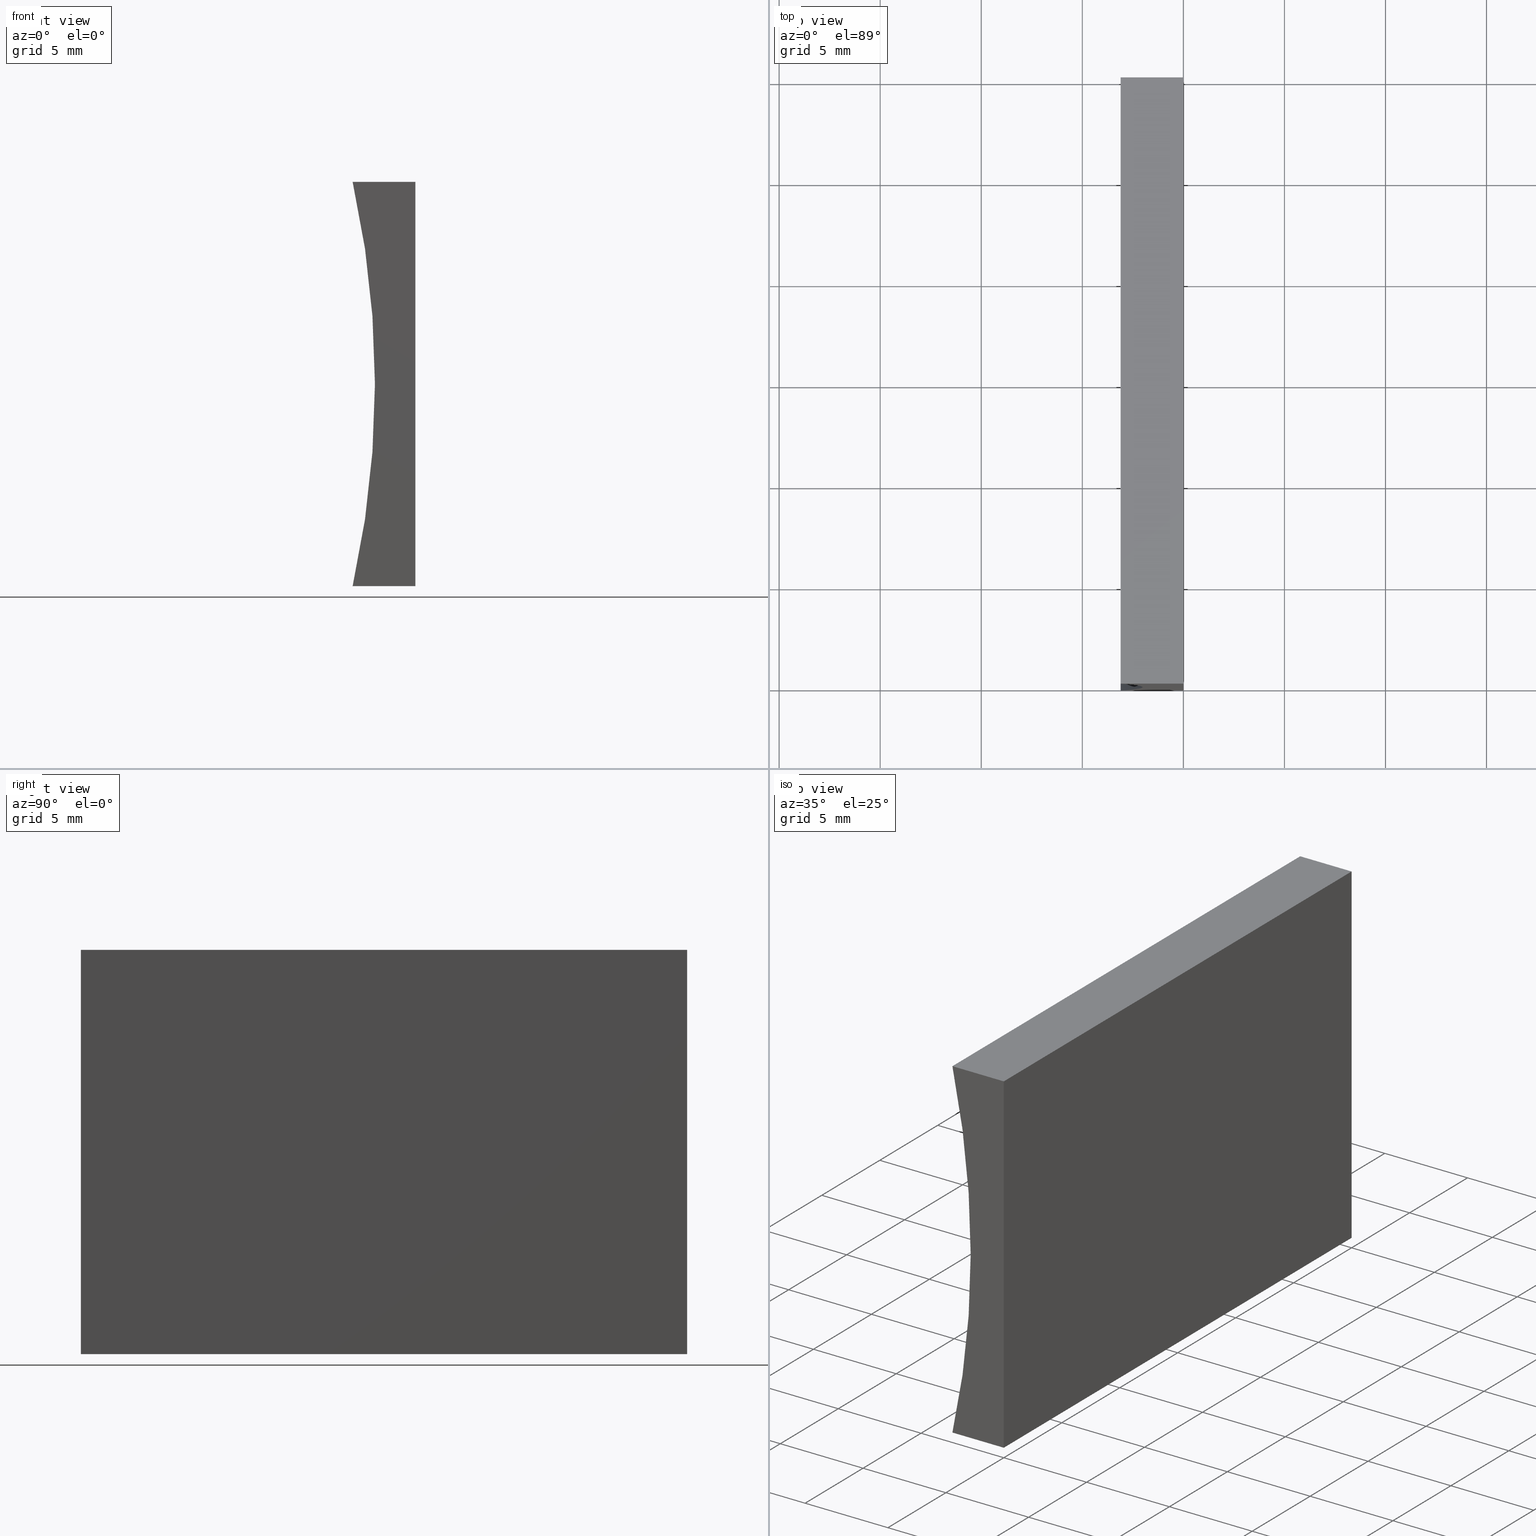
[diagram: canonical four-view strip — front | top / right | iso, engineering-drawing reading convention]
A machine part, canonical four-view strip (front | top / right | iso — engineering-drawing reading convention). The complete STEP part file that produces these views, byte-faithful:
ISO-10303-21;
HEADER;
FILE_DESCRIPTION (( 'STEP AP214' ),
    '1' );
FILE_NAME ('155489.STEP',
    '2019-07-04T03:37:12',
    ( 'user' ),
    ( '΢���й�' ),
    'SwSTEP 2.0',
    'SolidWorks 2016',
    '' );
FILE_SCHEMA (( 'AUTOMOTIVE_DESIGN' ));
ENDSEC;

DATA;
#1 = EDGE_CURVE ( 'NONE', #10, #32, #5, .T. ) ;
#2 = EDGE_LOOP ( 'NONE', ( #13, #92, #108, #86 ) ) ;
#3 = VERTEX_POINT ( 'NONE', #78 ) ;
#4 =( NAMED_UNIT ( * ) PLANE_ANGLE_UNIT ( ) SI_UNIT ( $, .RADIAN. ) );
#5 = LINE ( 'NONE', #198, #146 ) ;
#6 = ADVANCED_FACE ( 'NONE', ( #24 ), #161, .T. ) ;
#7 = EDGE_CURVE ( 'NONE', #3, #93, #80, .T. ) ;
#8 = DIRECTION ( 'NONE',  ( 0.0000000000000000000, 0.0000000000000000000, 1.000000000000000000 ) ) ;
#9 = VECTOR ( 'NONE', #37, 1000.000000000000000 ) ;
#10 = VERTEX_POINT ( 'NONE', #115 ) ;
#11 = PRODUCT_DEFINITION_CONTEXT ( 'detailed design', #112, 'design' ) ;
#12 = ORIENTED_EDGE ( 'NONE', *, *, #34, .T. ) ;
#13 = ORIENTED_EDGE ( 'NONE', *, *, #62, .F. ) ;
#14 = SURFACE_STYLE_FILL_AREA ( #195 ) ;
#15 = EDGE_CURVE ( 'NONE', #93, #172, #50, .T. ) ;
#16 = SURFACE_SIDE_STYLE ('',( #162 ) ) ;
#17 = AXIS2_PLACEMENT_3D ( 'NONE', #22, #201, #83 ) ;
#18 = ORIENTED_EDGE ( 'NONE', *, *, #101, .F. ) ;
#19 = APPLICATION_PROTOCOL_DEFINITION ( 'draft international standard', 'automotive_design', 1998, #116 ) ;
#20 = ORIENTED_EDGE ( 'NONE', *, *, #1, .T. ) ;
#21 = VERTEX_POINT ( 'NONE', #99 ) ;
#22 = CARTESIAN_POINT ( 'NONE',  ( 2.449293598294706500E-015, 30.00000000000000000, 20.00000000000000000 ) ) ;
#23 =( GEOMETRIC_REPRESENTATION_CONTEXT ( 3 ) GLOBAL_UNCERTAINTY_ASSIGNED_CONTEXT ( ( #94 ) ) GLOBAL_UNIT_ASSIGNED_CONTEXT ( ( #113, #90, #70 ) ) REPRESENTATION_CONTEXT ( 'NONE', 'WORKASPACE' ) );
#24 = FACE_OUTER_BOUND ( 'NONE', #168, .T. ) ;
#25 = PRESENTATION_STYLE_ASSIGNMENT (( #197 ) ) ;
#26 = LINE ( 'NONE', #59, #152 ) ;
#27 = EDGE_LOOP ( 'NONE', ( #43, #39, #38, #35 ) ) ;
#28 = ORIENTED_EDGE ( 'NONE', *, *, #105, .T. ) ;
#29 = AXIS2_PLACEMENT_3D ( 'NONE', #149, #82, #54 ) ;
#30 = ORIENTED_EDGE ( 'NONE', *, *, #51, .T. ) ;
#31 = DIRECTION ( 'NONE',  ( 0.0000000000000000000, 0.0000000000000000000, 1.000000000000000000 ) ) ;
#32 = VERTEX_POINT ( 'NONE', #127 ) ;
#33 = DIRECTION ( 'NONE',  ( 0.0000000000000000000, 0.0000000000000000000, -1.000000000000000000 ) ) ;
#34 = EDGE_CURVE ( 'NONE', #154, #10, #26, .T. ) ;
#35 = ORIENTED_EDGE ( 'NONE', *, *, #199, .T. ) ;
#36 = ORIENTED_EDGE ( 'NONE', *, *, #101, .T. ) ;
#37 = DIRECTION ( 'NONE',  ( 1.000000000000000000, -0.0000000000000000000, 1.117806566351713100E-015 ) ) ;
#38 = ORIENTED_EDGE ( 'NONE', *, *, #34, .F. ) ;
#39 = ORIENTED_EDGE ( 'NONE', *, *, #1, .F. ) ;
#40 = CARTESIAN_POINT ( 'NONE',  ( 2.449293598294706500E-015, 30.00000000000000000, 20.00000000000000000 ) ) ;
#41 = ORIENTED_EDGE ( 'NONE', *, *, #105, .F. ) ;
#42 = FILL_AREA_STYLE ('',( #144 ) ) ;
#43 = ORIENTED_EDGE ( 'NONE', *, *, #61, .T. ) ;
#44 = ORIENTED_EDGE ( 'NONE', *, *, #199, .F. ) ;
#45 = MANIFOLD_SOLID_BREP ( '͹̨-����1', #68 ) ;
#46 = CARTESIAN_POINT ( 'NONE',  ( -47.85000000000000100, 30.00000000000000000, 10.00000000000000900 ) ) ;
#47 = LINE ( 'NONE', #120, #117 ) ;
#48 = DIRECTION ( 'NONE',  ( -1.224646799147353200E-016, -0.0000000000000000000, -1.000000000000000000 ) ) ;
#49 = DIRECTION ( 'NONE',  ( -0.0000000000000000000, -1.000000000000000000, -0.0000000000000000000 ) ) ;
#50 = LINE ( 'NONE', #72, #9 ) ;
#51 = EDGE_CURVE ( 'NONE', #10, #21, #139, .T. ) ;
#52 = EDGE_CURVE ( 'NONE', #174, #93, #184, .T. ) ;
#53 = DIRECTION ( 'NONE',  ( -1.000000000000000000, 0.0000000000000000000, 1.224646799147353200E-016 ) ) ;
#54 = DIRECTION ( 'NONE',  ( 0.0000000000000000000, -0.0000000000000000000, 1.000000000000000000 ) ) ;
#55 = VECTOR ( 'NONE', #67, 1000.000000000000000 ) ;
#56 = ORIENTED_EDGE ( 'NONE', *, *, #62, .T. ) ;
#57 = PLANE ( 'NONE',  #203 ) ;
#58 = MECHANICAL_DESIGN_GEOMETRIC_PRESENTATION_REPRESENTATION (  '', ( #98 ), #164 ) ;
#59 = CARTESIAN_POINT ( 'NONE',  ( 0.0000000000000000000, 30.00000000000000000, 0.0000000000000000000 ) ) ;
#60 = ADVANCED_FACE ( 'NONE', ( #134 ), #123, .F. ) ;
#61 = EDGE_CURVE ( 'NONE', #172, #32, #165, .T. ) ;
#62 = EDGE_CURVE ( 'NONE', #32, #174, #133, .T. ) ;
#63 = SHAPE_DEFINITION_REPRESENTATION ( #155, #141 ) ;
#64 = ADVANCED_FACE ( 'NONE', ( #128 ), #75, .F. ) ;
#65 = DIRECTION ( 'NONE',  ( -0.0000000000000000000, -1.000000000000000000, -0.0000000000000000000 ) ) ;
#66 = AXIS2_PLACEMENT_3D ( 'NONE', #176, #65, #163 ) ;
#67 = DIRECTION ( 'NONE',  ( -0.0000000000000000000, -1.000000000000000000, -0.0000000000000000000 ) ) ;
#68 = CLOSED_SHELL ( 'NONE', ( #178, #171, #64, #60, #6, #194 ) ) ;
#69 = DIRECTION ( 'NONE',  ( -0.0000000000000000000, -1.000000000000000000, -0.0000000000000000000 ) ) ;
#70 =( NAMED_UNIT ( * ) SI_UNIT ( $, .STERADIAN. ) SOLID_ANGLE_UNIT ( ) );
#71 = DIRECTION ( 'NONE',  ( 0.0000000000000000000, 1.000000000000000000, 0.0000000000000000000 ) ) ;
#72 = CARTESIAN_POINT ( 'NONE',  ( 2.449293598294706500E-015, 0.0000000000000000000, 20.00000000000000000 ) ) ;
#73 = ORIENTED_EDGE ( 'NONE', *, *, #51, .F. ) ;
#74 = DIRECTION ( 'NONE',  ( -1.224646799147353200E-016, -0.0000000000000000000, -1.000000000000000000 ) ) ;
#75 = PLANE ( 'NONE',  #17 ) ;
#76 = DIRECTION ( 'NONE',  ( 2.235613132703426200E-015, -0.0000000000000000000, 1.000000000000000000 ) ) ;
#77 = PRODUCT_RELATED_PRODUCT_CATEGORY ( 'part', '', ( #143 ) ) ;
#78 = CARTESIAN_POINT ( 'NONE',  ( -3.103799043941172500, 30.00000000000000000, 19.99999999999999600 ) ) ;
#79 = AXIS2_PLACEMENT_3D ( 'NONE', #46, #71, #189 ) ;
#80 = LINE ( 'NONE', #153, #55 ) ;
#81 =( LENGTH_UNIT ( ) NAMED_UNIT ( * ) SI_UNIT ( .MILLI., .METRE. ) );
#82 = DIRECTION ( 'NONE',  ( 0.0000000000000000000, 1.000000000000000000, 0.0000000000000000000 ) ) ;
#83 = DIRECTION ( 'NONE',  ( -1.000000000000000000, 0.0000000000000000000, -1.117806566351713100E-015 ) ) ;
#84 = EDGE_CURVE ( 'NONE', #21, #174, #135, .T. ) ;
#85 = CARTESIAN_POINT ( 'NONE',  ( -47.85000000000000100, 30.00000000000000000, 10.00000000000000900 ) ) ;
#86 = ORIENTED_EDGE ( 'NONE', *, *, #52, .F. ) ;
#87 = EDGE_LOOP ( 'NONE', ( #177, #44, #41, #188 ) ) ;
#88 = EDGE_LOOP ( 'NONE', ( #119, #151, #18, #160 ) ) ;
#89 = STYLED_ITEM ( 'NONE', ( #175 ), #141 ) ;
#90 =( NAMED_UNIT ( * ) PLANE_ANGLE_UNIT ( ) SI_UNIT ( $, .RADIAN. ) );
#91 = COLOUR_RGB ( '',1.000000000000000000, 1.000000000000000000, 1.000000000000000000 ) ;
#92 = ORIENTED_EDGE ( 'NONE', *, *, #61, .F. ) ;
#93 = VERTEX_POINT ( 'NONE', #107 ) ;
#94 = UNCERTAINTY_MEASURE_WITH_UNIT (LENGTH_MEASURE( 1.000000000000000100E-005 ), #113, 'distance_accuracy_value', 'NONE');
#95 = VECTOR ( 'NONE', #191, 1000.000000000000000 ) ;
#96 = DIRECTION ( 'NONE',  ( -1.000000000000000000, 0.0000000000000000000, 2.235613132703426200E-015 ) ) ;
#97 = PRODUCT_CONTEXT ( 'NONE', #116, 'mechanical' ) ;
#98 = STYLED_ITEM ( 'NONE', ( #25 ), #45 ) ;
#99 = CARTESIAN_POINT ( 'NONE',  ( -3.103799043941174700, 30.00000000000000000, 3.469446951953614200E-015 ) ) ;
#100 =( NAMED_UNIT ( * ) SI_UNIT ( $, .STERADIAN. ) SOLID_ANGLE_UNIT ( ) );
#101 = EDGE_CURVE ( 'NONE', #21, #3, #124, .T. ) ;
#102 = CARTESIAN_POINT ( 'NONE',  ( 0.0000000000000000000, 0.0000000000000000000, 0.0000000000000000000 ) ) ;
#103 = PRODUCT_DEFINITION_FORMATION_WITH_SPECIFIED_SOURCE ( '�κ�', '', #143, .NOT_KNOWN. ) ;
#104 = CARTESIAN_POINT ( 'NONE',  ( 0.0000000000000000000, 30.00000000000000000, 0.0000000000000000000 ) ) ;
#105 = EDGE_CURVE ( 'NONE', #3, #154, #47, .T. ) ;
#106 = DIRECTION ( 'NONE',  ( 1.000000000000000000, 0.0000000000000000000, 0.0000000000000000000 ) ) ;
#107 = CARTESIAN_POINT ( 'NONE',  ( -3.103799043941172500, 0.0000000000000000000, 19.99999999999999600 ) ) ;
#108 = ORIENTED_EDGE ( 'NONE', *, *, #15, .F. ) ;
#109 = DIRECTION ( 'NONE',  ( 1.000000000000000000, 0.0000000000000000000, -2.235613132703426200E-015 ) ) ;
#110 = COLOUR_RGB ( '',1.000000000000000000, 1.000000000000000000, 1.000000000000000000 ) ;
#111 = CYLINDRICAL_SURFACE ( 'NONE', #193, 45.85000000000000100 ) ;
#112 = APPLICATION_CONTEXT ( 'automotive_design' ) ;
#113 =( LENGTH_UNIT ( ) NAMED_UNIT ( * ) SI_UNIT ( .MILLI., .METRE. ) );
#114 = SURFACE_SIDE_STYLE ('',( #14 ) ) ;
#115 = CARTESIAN_POINT ( 'NONE',  ( 0.0000000000000000000, 30.00000000000000000, 0.0000000000000000000 ) ) ;
#116 = APPLICATION_CONTEXT ( 'automotive_design' ) ;
#117 = VECTOR ( 'NONE', #170, 1000.000000000000000 ) ;
#118 =( GEOMETRIC_REPRESENTATION_CONTEXT ( 3 ) GLOBAL_UNCERTAINTY_ASSIGNED_CONTEXT ( ( #182 ) ) GLOBAL_UNIT_ASSIGNED_CONTEXT ( ( #81, #145, #180 ) ) REPRESENTATION_CONTEXT ( 'NONE', 'WORKASPACE' ) );
#119 = ORIENTED_EDGE ( 'NONE', *, *, #52, .T. ) ;
#120 = CARTESIAN_POINT ( 'NONE',  ( 2.449293598294706500E-015, 30.00000000000000000, 20.00000000000000000 ) ) ;
#121 = FACE_OUTER_BOUND ( 'NONE', #2, .T. ) ;
#122 =( LENGTH_UNIT ( ) NAMED_UNIT ( * ) SI_UNIT ( .MILLI., .METRE. ) );
#123 = PLANE ( 'NONE',  #150 ) ;
#124 = CIRCLE ( 'NONE', #138, 45.85000000000000100 ) ;
#125 = FACE_OUTER_BOUND ( 'NONE', #88, .T. ) ;
#126 = FACE_OUTER_BOUND ( 'NONE', #169, .T. ) ;
#127 = CARTESIAN_POINT ( 'NONE',  ( 0.0000000000000000000, 0.0000000000000000000, 0.0000000000000000000 ) ) ;
#128 = FACE_OUTER_BOUND ( 'NONE', #87, .T. ) ;
#129 = VECTOR ( 'NONE', #185, 1000.000000000000000 ) ;
#130 = DIRECTION ( 'NONE',  ( -0.0000000000000000000, -1.000000000000000000, -0.0000000000000000000 ) ) ;
#131 = CARTESIAN_POINT ( 'NONE',  ( 2.449293598294706500E-015, 30.00000000000000000, 20.00000000000000000 ) ) ;
#132 = VECTOR ( 'NONE', #96, 1000.000000000000000 ) ;
#133 = LINE ( 'NONE', #202, #95 ) ;
#134 = FACE_OUTER_BOUND ( 'NONE', #27, .T. ) ;
#135 = LINE ( 'NONE', #136, #129 ) ;
#136 = CARTESIAN_POINT ( 'NONE',  ( -3.103799043941174700, 30.00000000000000000, 3.469446951953614200E-015 ) ) ;
#137 = VECTOR ( 'NONE', #74, 1000.000000000000000 ) ;
#138 = AXIS2_PLACEMENT_3D ( 'NONE', #85, #130, #31 ) ;
#139 = LINE ( 'NONE', #196, #132 ) ;
#140 = PLANE ( 'NONE',  #29 ) ;
#141 = ADVANCED_BREP_SHAPE_REPRESENTATION ( '155489', ( #45, #159 ), #23 ) ;
#142 = DIRECTION ( 'NONE',  ( 1.224646799147353200E-016, 0.0000000000000000000, 1.000000000000000000 ) ) ;
#143 = PRODUCT ( '155489', '155489', '', ( #97 ) ) ;
#144 = FILL_AREA_STYLE_COLOUR ( '', #110 ) ;
#145 =( NAMED_UNIT ( * ) PLANE_ANGLE_UNIT ( ) SI_UNIT ( $, .RADIAN. ) );
#146 = VECTOR ( 'NONE', #49, 1000.000000000000000 ) ;
#147 = APPLICATION_PROTOCOL_DEFINITION ( 'draft international standard', 'automotive_design', 1998, #112 ) ;
#148 = LINE ( 'NONE', #40, #156 ) ;
#149 = CARTESIAN_POINT ( 'NONE',  ( -47.85000000000000100, 0.0000000000000000000, 10.00000000000000900 ) ) ;
#150 = AXIS2_PLACEMENT_3D ( 'NONE', #157, #53, #142 ) ;
#151 = ORIENTED_EDGE ( 'NONE', *, *, #7, .F. ) ;
#152 = VECTOR ( 'NONE', #48, 1000.000000000000000 ) ;
#153 = CARTESIAN_POINT ( 'NONE',  ( -3.103799043941172500, 30.00000000000000000, 19.99999999999999600 ) ) ;
#154 = VERTEX_POINT ( 'NONE', #131 ) ;
#155 = PRODUCT_DEFINITION_SHAPE ( 'NONE', 'NONE',  #204 ) ;
#156 = VECTOR ( 'NONE', #69, 1000.000000000000000 ) ;
#157 = CARTESIAN_POINT ( 'NONE',  ( 0.0000000000000000000, 30.00000000000000000, 0.0000000000000000000 ) ) ;
#158 = UNCERTAINTY_MEASURE_WITH_UNIT (LENGTH_MEASURE( 1.000000000000000100E-005 ), #122, 'distance_accuracy_value', 'NONE');
#159 = AXIS2_PLACEMENT_3D ( 'NONE', #102, #8, #106 ) ;
#160 = ORIENTED_EDGE ( 'NONE', *, *, #84, .T. ) ;
#161 = PLANE ( 'NONE',  #79 ) ;
#162 = SURFACE_STYLE_FILL_AREA ( #42 ) ;
#163 = DIRECTION ( 'NONE',  ( 0.0000000000000000000, 0.0000000000000000000, 1.000000000000000000 ) ) ;
#164 =( GEOMETRIC_REPRESENTATION_CONTEXT ( 3 ) GLOBAL_UNCERTAINTY_ASSIGNED_CONTEXT ( ( #158 ) ) GLOBAL_UNIT_ASSIGNED_CONTEXT ( ( #122, #4, #100 ) ) REPRESENTATION_CONTEXT ( 'NONE', 'WORKASPACE' ) );
#165 = LINE ( 'NONE', #179, #137 ) ;
#166 = CARTESIAN_POINT ( 'NONE',  ( 2.449293598294706500E-015, 0.0000000000000000000, 20.00000000000000000 ) ) ;
#167 = FILL_AREA_STYLE_COLOUR ( '', #91 ) ;
#168 = EDGE_LOOP ( 'NONE', ( #30, #36, #28, #12 ) ) ;
#169 = EDGE_LOOP ( 'NONE', ( #56, #173, #73, #20 ) ) ;
#170 = DIRECTION ( 'NONE',  ( 1.000000000000000000, -0.0000000000000000000, 1.117806566351713100E-015 ) ) ;
#171 = ADVANCED_FACE ( 'NONE', ( #125 ), #111, .F. ) ;
#172 = VERTEX_POINT ( 'NONE', #166 ) ;
#173 = ORIENTED_EDGE ( 'NONE', *, *, #84, .F. ) ;
#174 = VERTEX_POINT ( 'NONE', #186 ) ;
#175 = PRESENTATION_STYLE_ASSIGNMENT (( #181 ) ) ;
#176 = CARTESIAN_POINT ( 'NONE',  ( -47.85000000000000100, 0.0000000000000000000, 10.00000000000000900 ) ) ;
#177 = ORIENTED_EDGE ( 'NONE', *, *, #15, .T. ) ;
#178 = ADVANCED_FACE ( 'NONE', ( #126 ), #57, .F. ) ;
#179 = CARTESIAN_POINT ( 'NONE',  ( 0.0000000000000000000, 0.0000000000000000000, 0.0000000000000000000 ) ) ;
#180 =( NAMED_UNIT ( * ) SI_UNIT ( $, .STERADIAN. ) SOLID_ANGLE_UNIT ( ) );
#181 = SURFACE_STYLE_USAGE ( .BOTH. , #16 ) ;
#182 = UNCERTAINTY_MEASURE_WITH_UNIT (LENGTH_MEASURE( 1.000000000000000100E-005 ), #81, 'distance_accuracy_value', 'NONE');
#183 = MECHANICAL_DESIGN_GEOMETRIC_PRESENTATION_REPRESENTATION (  '', ( #89 ), #118 ) ;
#184 = CIRCLE ( 'NONE', #66, 45.85000000000000100 ) ;
#185 = DIRECTION ( 'NONE',  ( -0.0000000000000000000, -1.000000000000000000, -0.0000000000000000000 ) ) ;
#186 = CARTESIAN_POINT ( 'NONE',  ( -3.103799043941174700, 0.0000000000000000000, 3.469446951953614200E-015 ) ) ;
#187 = PRESENTATION_LAYER_ASSIGNMENT (  '', '', ( #89 ) ) ;
#188 = ORIENTED_EDGE ( 'NONE', *, *, #7, .T. ) ;
#189 = DIRECTION ( 'NONE',  ( 0.0000000000000000000, -0.0000000000000000000, 1.000000000000000000 ) ) ;
#190 = CARTESIAN_POINT ( 'NONE',  ( -47.85000000000000100, 30.00000000000000000, 10.00000000000000900 ) ) ;
#191 = DIRECTION ( 'NONE',  ( -1.000000000000000000, 0.0000000000000000000, 2.235613132703426200E-015 ) ) ;
#192 = PRESENTATION_LAYER_ASSIGNMENT (  '', '', ( #98 ) ) ;
#193 = AXIS2_PLACEMENT_3D ( 'NONE', #190, #200, #33 ) ;
#194 = ADVANCED_FACE ( 'NONE', ( #121 ), #140, .F. ) ;
#195 = FILL_AREA_STYLE ('',( #167 ) ) ;
#196 = CARTESIAN_POINT ( 'NONE',  ( 0.0000000000000000000, 30.00000000000000000, 0.0000000000000000000 ) ) ;
#197 = SURFACE_STYLE_USAGE ( .BOTH. , #114 ) ;
#198 = CARTESIAN_POINT ( 'NONE',  ( 0.0000000000000000000, 30.00000000000000000, 0.0000000000000000000 ) ) ;
#199 = EDGE_CURVE ( 'NONE', #154, #172, #148, .T. ) ;
#200 = DIRECTION ( 'NONE',  ( -0.0000000000000000000, -1.000000000000000000, -0.0000000000000000000 ) ) ;
#201 = DIRECTION ( 'NONE',  ( 1.117806566351713100E-015, 0.0000000000000000000, -1.000000000000000000 ) ) ;
#202 = CARTESIAN_POINT ( 'NONE',  ( 0.0000000000000000000, 0.0000000000000000000, 0.0000000000000000000 ) ) ;
#203 = AXIS2_PLACEMENT_3D ( 'NONE', #104, #76, #109 ) ;
#204 = PRODUCT_DEFINITION ( 'δ֪', '', #103, #11 ) ;
ENDSEC;
END-ISO-10303-21;
